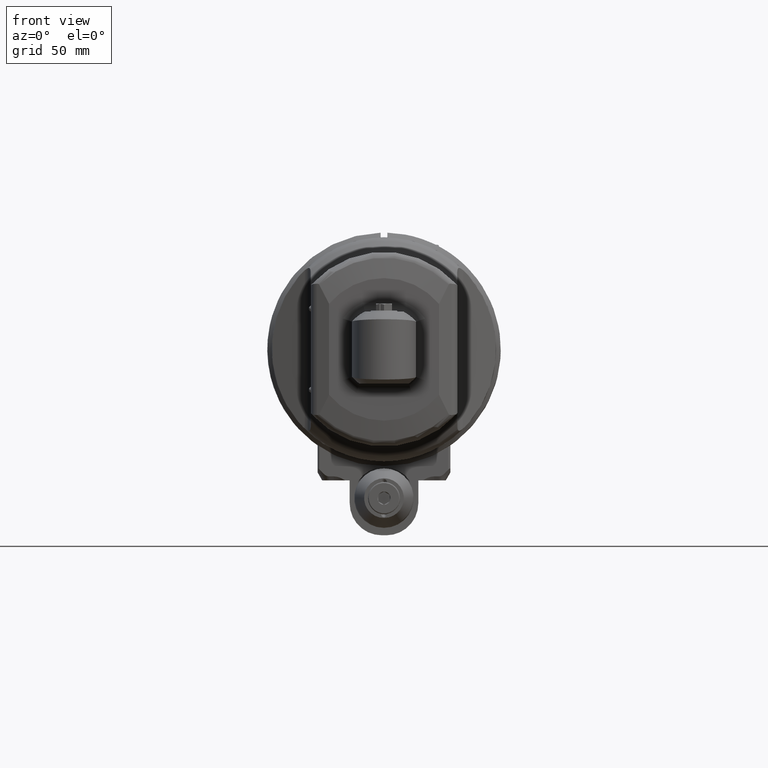
[diagram: clean part render]
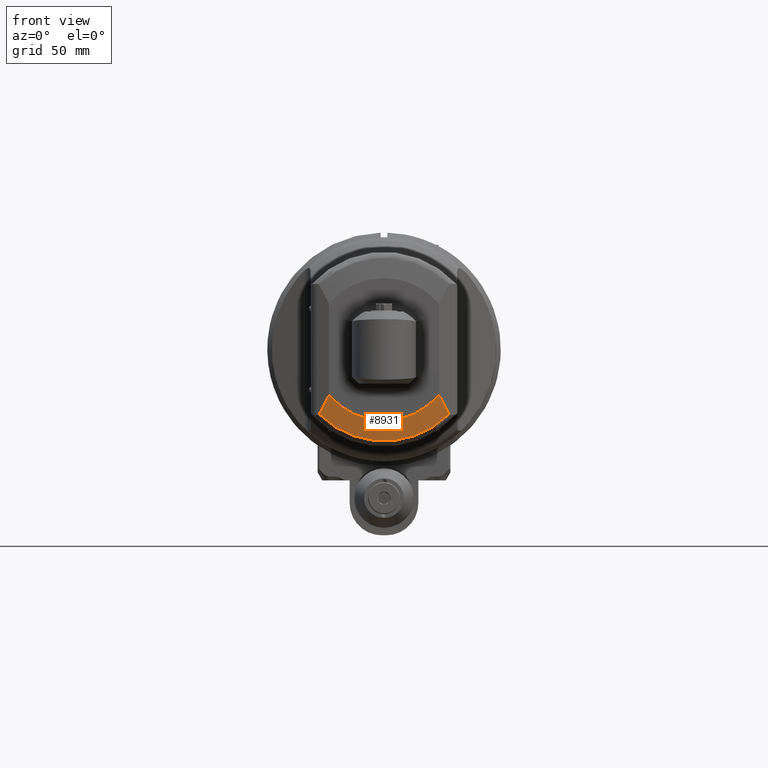
[diagram: same view with one face highlighted and labeled with its STEP entity id]
A machine part, front view. The second image highlights one B-rep face of the part: STEP entity #8931.
In plain terms, the highlighted conical surface has half-angle 80 deg.
Its self-contained STEP definition (entity closure, byte-faithful):
#46=CONICAL_SURFACE('',#9606,1.40114923019213,1.39626340159546);
#124=(
BOUNDED_CURVE()
B_SPLINE_CURVE(2,(#13450,#13451,#13452),.UNSPECIFIED.,.F.,.F.)
B_SPLINE_CURVE_WITH_KNOTS((3,3),(0.855072011948374,1.81420226589369),
 .UNSPECIFIED.)
CURVE()
GEOMETRIC_REPRESENTATION_ITEM()
RATIONAL_B_SPLINE_CURVE((1.04043333858444,1.05088763418123,1.03392175789734))
REPRESENTATION_ITEM('')
);
#418=B_SPLINE_CURVE_WITH_KNOTS('',3,(#13870,#13871,#13872,#13873,#13874,
#13875),.UNSPECIFIED.,.F.,.F.,(4,1,1,4),(0.,0.3333333333333,0.6666666666667,
1.),.UNSPECIFIED.);
#2041=FACE_OUTER_BOUND('',#2589,.T.);
#2589=EDGE_LOOP('',(#6140,#6141,#6142,#6143));
#3142=CIRCLE('',#9517,1.22667072286457);
#3187=CIRCLE('',#9605,1.57562773751968);
#3582=VERTEX_POINT('',#13412);
#3584=VERTEX_POINT('',#13415);
#3591=VERTEX_POINT('',#13441);
#3670=VERTEX_POINT('',#13848);
#4508=EDGE_CURVE('',#3582,#3584,#3142,.T.);
#4518=EDGE_CURVE('',#3582,#3591,#124,.T.);
#4628=EDGE_CURVE('',#3670,#3591,#3187,.T.);
#4631=EDGE_CURVE('',#3584,#3670,#418,.T.);
#6140=ORIENTED_EDGE('',*,*,#4628,.F.);
#6141=ORIENTED_EDGE('',*,*,#4631,.F.);
#6142=ORIENTED_EDGE('',*,*,#4508,.F.);
#6143=ORIENTED_EDGE('',*,*,#4518,.T.);
#8931=ADVANCED_FACE('',(#2041),#46,.T.);
#9517=AXIS2_PLACEMENT_3D('',#13416,#10558,#10559);
#9605=AXIS2_PLACEMENT_3D('',#13849,#10769,#10770);
#9606=AXIS2_PLACEMENT_3D('',#13869,#10771,#10772);
#10558=DIRECTION('center_axis',(1.,0.,0.));
#10559=DIRECTION('ref_axis',(0.,0.63731240024112,-0.770605544035924));
#10769=DIRECTION('center_axis',(-1.,0.,0.));
#10770=DIRECTION('ref_axis',(0.,0.706982416412335,0.707231124091535));
#10771=DIRECTION('center_axis',(-1.,0.,0.));
#10772=DIRECTION('ref_axis',(0.,1.,0.));
#13412=CARTESIAN_POINT('',(3.18897637795276,0.781772462694488,-0.945279259746063));
#13415=CARTESIAN_POINT('',(3.18897637795276,0.781772462694488,0.945279259746063));
#13416=CARTESIAN_POINT('Origin',(3.18897637795276,0.,0.));
#13441=CARTESIAN_POINT('',(3.12744584116181,1.1139411052374,-1.11433297595512));
#13450=CARTESIAN_POINT('Ctrl Pts',(3.18897637795255,0.78177246269384,-0.945279259747303));
#13451=CARTESIAN_POINT('Ctrl Pts',(3.16360182765565,0.923277163739723,-1.01499524547655));
#13452=CARTESIAN_POINT('Ctrl Pts',(3.12744584116157,1.11394110523658,-1.11433297595671));
#13848=CARTESIAN_POINT('',(3.12744584116181,1.11394110523819,1.11433297595591));
#13849=CARTESIAN_POINT('Origin',(3.12744584116181,0.,0.));
#13869=CARTESIAN_POINT('Origin',(3.15821110955709,0.,0.));
#13870=CARTESIAN_POINT('Ctrl Pts',(3.18897637795276,0.781772462694488,0.945279259746063));
#13871=CARTESIAN_POINT('Ctrl Pts',(3.18248688799921,0.817962003990158,0.96310898219252));
#13872=CARTESIAN_POINT('Ctrl Pts',(3.16924456730236,0.890770903865748,0.999491949769685));
#13873=CARTESIAN_POINT('Ctrl Pts',(3.14869690042795,1.00144018423307,1.05594618575827));
#13874=CARTESIAN_POINT('Ctrl Pts',(3.13459175638031,1.0762580410122,1.0946997403878));
#13875=CARTESIAN_POINT('Ctrl Pts',(3.12744584116181,1.11394110523819,1.11433297595591));